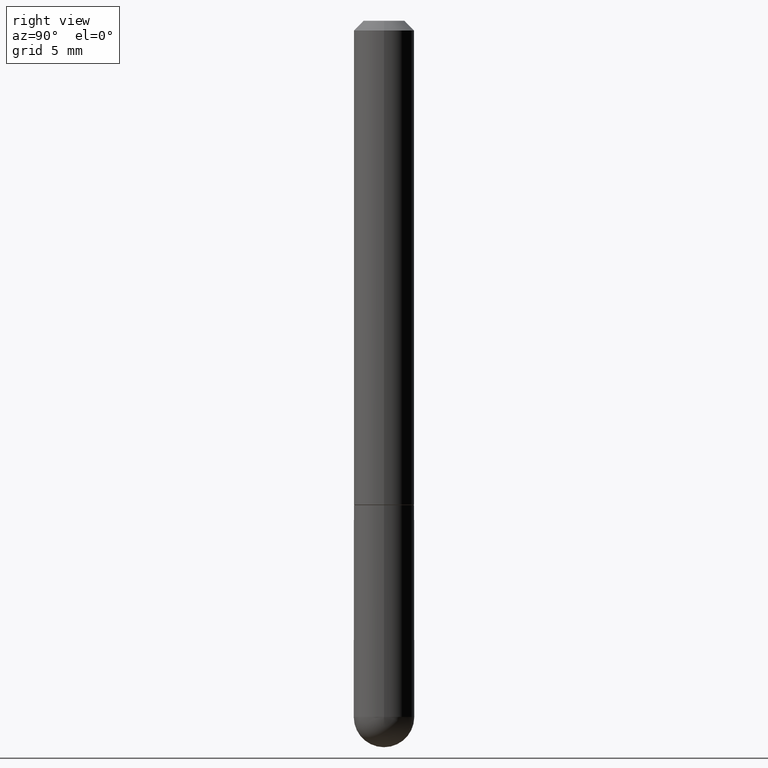
[diagram: clean part render]
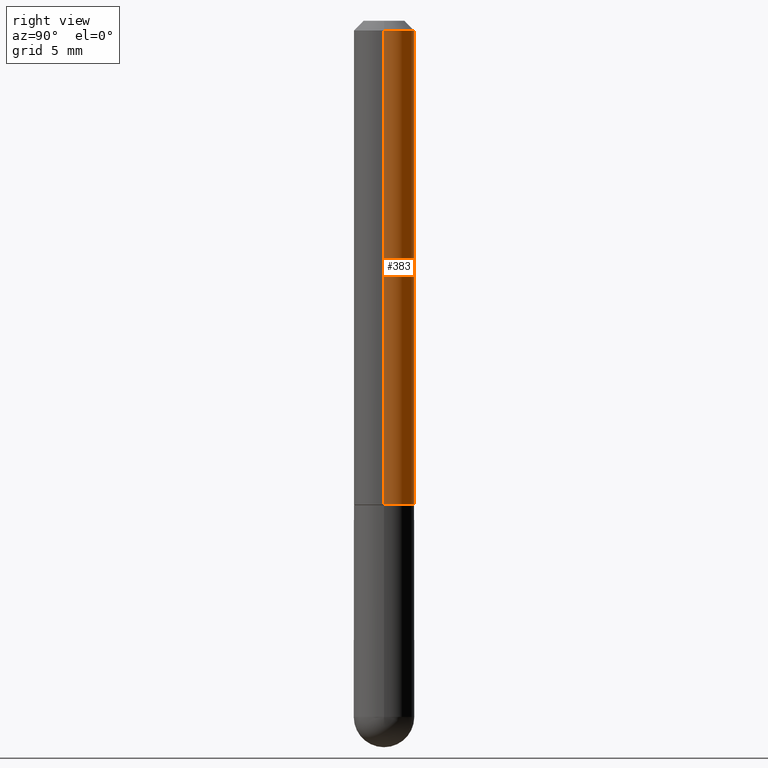
[diagram: same view with one face highlighted and labeled with its STEP entity id]
A machine part, right view. The second image highlights one B-rep face of the part: STEP entity #383.
In plain terms, the highlighted cylindrical surface (edge-blend (fillet) strip) has radius 1.5875 mm, axis along (-0, 0, 1).
Its self-contained STEP definition (entity closure, byte-faithful):
#14 = EDGE_LOOP ( 'NONE', ( #256, #240, #171, #108 ) ) ;
#16 = CARTESIAN_POINT ( 'NONE',  ( 2.443023337378951835E-29, -3.487989857504302970E-15, -0.9990000000000002212 ) ) ;
#18 = DIRECTION ( 'NONE',  ( -2.445468806185136597E-29, 3.491481338843145583E-15, 1.000000000000000000 ) ) ;
#33 = VERTEX_POINT ( 'NONE', #63 ) ;
#63 = CARTESIAN_POINT ( 'NONE',  ( 0.06249999999999995143, -4.986107516375835278E-16, -0.02000000000000006981 ) ) ;
#78 = DIRECTION ( 'NONE',  ( -2.445468806185136597E-29, 3.491481338843145583E-15, 1.000000000000000000 ) ) ;
#108 = ORIENTED_EDGE ( 'NONE', *, *, #234, .F. ) ;
#109 = DIRECTION ( 'NONE',  ( -2.445468806185136877E-29, 3.491481338843145188E-15, 1.000000000000000000 ) ) ;
#116 = CARTESIAN_POINT ( 'NONE',  ( 0.000000000000000000, 0.000000000000000000, 0.000000000000000000 ) ) ;
#118 = DIRECTION ( 'NONE',  ( -2.445468806185136597E-29, 3.491481338843145583E-15, 1.000000000000000000 ) ) ;
#138 = CARTESIAN_POINT ( 'NONE',  ( 0.06250000000000004163, -4.364351673553919652E-16, 3.047610484872461972E-30 ) ) ;
#142 = DIRECTION ( 'NONE',  ( -2.445468806185136877E-29, 3.491481338843145188E-15, 1.000000000000000000 ) ) ;
#149 = DIRECTION ( 'NONE',  ( 1.000000000000000000, -6.982962677686270655E-15, 0.000000000000000000 ) ) ;
#163 = AXIS2_PLACEMENT_3D ( 'NONE', #16, #78, #149 ) ;
#171 = ORIENTED_EDGE ( 'NONE', *, *, #358, .F. ) ;
#186 = EDGE_CURVE ( 'NONE', #343, #201, #361, .T. ) ;
#201 = VERTEX_POINT ( 'NONE', #204 ) ;
#203 = VERTEX_POINT ( 'NONE', #252 ) ;
#204 = CARTESIAN_POINT ( 'NONE',  ( -0.06249999999999995143, 3.666055405785281740E-16, -0.02000000000000006981 ) ) ;
#205 = AXIS2_PLACEMENT_3D ( 'NONE', #370, #118, #335 ) ;
#212 = VECTOR ( 'NONE', #109, 39.37007874015748143 ) ;
#234 = EDGE_CURVE ( 'NONE', #203, #33, #257, .T. ) ;
#240 = ORIENTED_EDGE ( 'NONE', *, *, #186, .T. ) ;
#252 = CARTESIAN_POINT ( 'NONE',  ( 0.06250000000000013878, -3.924425024859695428E-15, -0.9990000000000002212 ) ) ;
#256 = ORIENTED_EDGE ( 'NONE', *, *, #377, .T. ) ;
#257 = LINE ( 'NONE', #138, #315 ) ;
#269 = DIRECTION ( 'NONE',  ( 1.000000000000000000, -6.982962677686266711E-15, 4.876176775795935793E-29 ) ) ;
#279 = CIRCLE ( 'NONE', #205, 0.06249999999999995143 ) ;
#285 = CARTESIAN_POINT ( 'NONE',  ( -0.06250000000000013878, -1.334820532290516771E-15, -0.9990000000000002212 ) ) ;
#290 = CIRCLE ( 'NONE', #163, 0.06250000000000013878 ) ;
#305 = FACE_OUTER_BOUND ( 'NONE', #14, .T. ) ;
#315 = VECTOR ( 'NONE', #142, 39.37007874015748143 ) ;
#335 = DIRECTION ( 'NONE',  ( 1.000000000000000000, -6.982962677686266711E-15, 0.000000000000000000 ) ) ;
#339 = CYLINDRICAL_SURFACE ( 'NONE', #371, 0.06250000000000004163 ) ;
#343 = VERTEX_POINT ( 'NONE', #285 ) ;
#349 = CARTESIAN_POINT ( 'NONE',  ( -0.06250000000000004163, 4.440892098500629120E-16, -3.074334431409318216E-30 ) ) ;
#358 = EDGE_CURVE ( 'NONE', #33, #201, #279, .T. ) ;
#361 = LINE ( 'NONE', #349, #212 ) ;
#370 = CARTESIAN_POINT ( 'NONE',  ( 4.890937612370289799E-31, -6.982962677686315028E-17, -0.02000000000000006981 ) ) ;
#371 = AXIS2_PLACEMENT_3D ( 'NONE', #116, #18, #269 ) ;
#377 = EDGE_CURVE ( 'NONE', #203, #343, #290, .T. ) ;
#383 = ADVANCED_FACE ( 'NONE', ( #305 ), #339, .T. ) ;